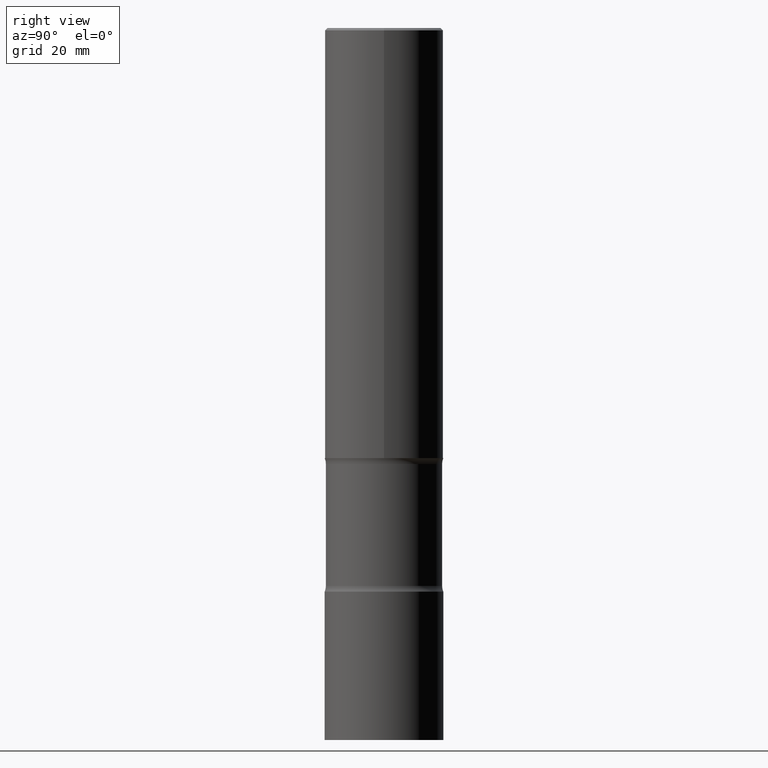
[diagram: clean part render]
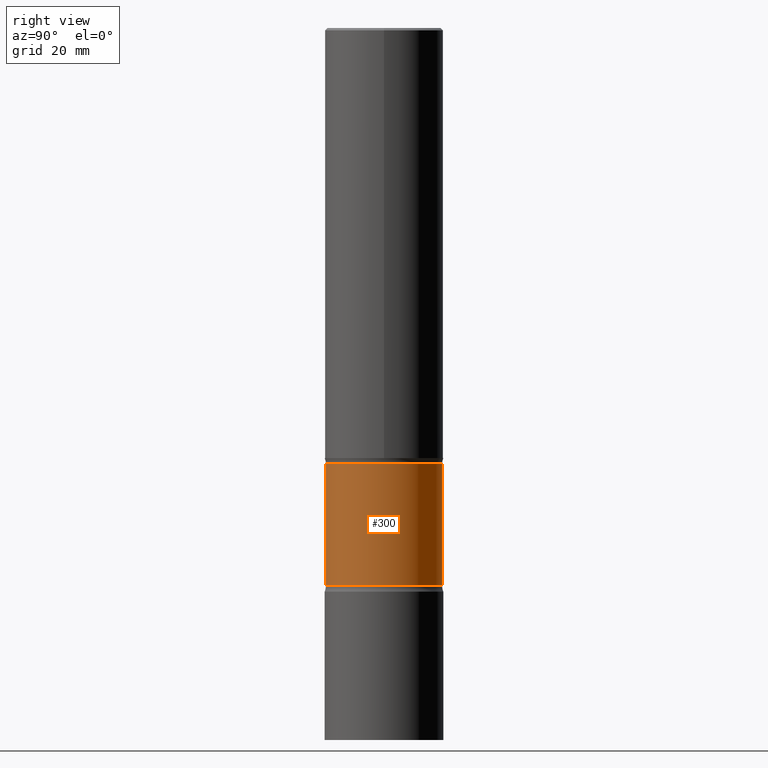
[diagram: same view with one face highlighted and labeled with its STEP entity id]
A machine part, right view. The second image highlights one B-rep face of the part: STEP entity #300.
In plain terms, the highlighted cylindrical surface (partial cylindrical patch) has radius 12.446 mm, axis along (0, -0, -1).
Its self-contained STEP definition (entity closure, byte-faithful):
#6 = EDGE_CURVE ( 'NONE', #94, #41, #86, .T. ) ;
#13 = DIRECTION ( 'NONE',  ( 6.982962677686266711E-15, 1.000000000000000000, -3.345119992241954342E-15 ) ) ;
#18 = DIRECTION ( 'NONE',  ( 2.601351323791836917E-29, -3.268248701348439037E-15, -1.000000000000000000 ) ) ;
#25 = CARTESIAN_POINT ( 'NONE',  ( 3.421651712066359198E-15, 0.4899999999999870570, -3.673989794855666791 ) ) ;
#27 = CARTESIAN_POINT ( 'NONE',  ( 1.486357676291951426E-28, -2.067570323369244540E-14, -5.999999999999999112 ) ) ;
#28 = LINE ( 'NONE', #408, #427 ) ;
#38 = EDGE_CURVE ( 'NONE', #192, #422, #349, .T. ) ;
#41 = VERTEX_POINT ( 'NONE', #72 ) ;
#52 = DIRECTION ( 'NONE',  ( 2.601351323791836917E-29, -3.268248701348439037E-15, -1.000000000000000000 ) ) ;
#57 = DIRECTION ( 'NONE',  ( 6.982962677686266711E-15, 1.000000000000000000, -2.230079994827969693E-15 ) ) ;
#72 = CARTESIAN_POINT ( 'NONE',  ( -3.395946508896822327E-15, -0.4900000000000131473, -3.673989794855663238 ) ) ;
#77 = EDGE_CURVE ( 'NONE', #41, #422, #28, .T. ) ;
#86 = CIRCLE ( 'NONE', #216, 0.4900000000000001021 ) ;
#87 = CARTESIAN_POINT ( 'NONE',  ( 8.812807036613977578E-29, -1.307372340140625811E-14, -3.673989794855665014 ) ) ;
#94 = VERTEX_POINT ( 'NONE', #25 ) ;
#108 = DIRECTION ( 'NONE',  ( 2.601351323791836917E-29, -3.268248701348439037E-15, -1.000000000000000000 ) ) ;
#116 = EDGE_CURVE ( 'NONE', #94, #192, #221, .T. ) ;
#132 = ORIENTED_EDGE ( 'NONE', *, *, #116, .F. ) ;
#165 = DIRECTION ( 'NONE',  ( 2.601351323791836917E-29, -3.268248701348439037E-15, -1.000000000000000000 ) ) ;
#192 = VERTEX_POINT ( 'NONE', #496 ) ;
#212 = FACE_OUTER_BOUND ( 'NONE', #425, .T. ) ;
#216 = AXIS2_PLACEMENT_3D ( 'NONE', #87, #165, #13 ) ;
#218 = CARTESIAN_POINT ( 'NONE',  ( -3.395946508896793533E-15, -0.4900000000000166445, -4.701010205144335430 ) ) ;
#221 = LINE ( 'NONE', #461, #323 ) ;
#233 = ORIENTED_EDGE ( 'NONE', *, *, #6, .T. ) ;
#284 = CYLINDRICAL_SURFACE ( 'NONE', #384, 0.4900000000000001021 ) ;
#300 = ADVANCED_FACE ( 'NONE', ( #212 ), #284, .T. ) ;
#323 = VECTOR ( 'NONE', #18, 39.37007874015748143 ) ;
#349 = CIRCLE ( 'NONE', #459, 0.4900000000000001021 ) ;
#374 = DIRECTION ( 'NONE',  ( 6.982962677686266711E-15, 1.000000000000000000, -3.345119992241954342E-15 ) ) ;
#384 = AXIS2_PLACEMENT_3D ( 'NONE', #27, #399, #57 ) ;
#388 = ORIENTED_EDGE ( 'NONE', *, *, #38, .F. ) ;
#396 = CARTESIAN_POINT ( 'NONE',  ( 1.148444794047964962E-28, -1.643028152359054986E-14, -4.701010205144336318 ) ) ;
#399 = DIRECTION ( 'NONE',  ( 2.601351323791836917E-29, -3.268248701348439037E-15, -1.000000000000000000 ) ) ;
#408 = CARTESIAN_POINT ( 'NONE',  ( -3.361644018907902538E-15, -0.4900000000000208078, -5.999999999999998224 ) ) ;
#418 = ORIENTED_EDGE ( 'NONE', *, *, #77, .T. ) ;
#422 = VERTEX_POINT ( 'NONE', #218 ) ;
#425 = EDGE_LOOP ( 'NONE', ( #233, #418, #388, #132 ) ) ;
#427 = VECTOR ( 'NONE', #108, 39.37007874015748143 ) ;
#459 = AXIS2_PLACEMENT_3D ( 'NONE', #396, #52, #374 ) ;
#461 = CARTESIAN_POINT ( 'NONE',  ( 3.421651712066419546E-15, 0.4899999999999793965, -6.000000000000000888 ) ) ;
#496 = CARTESIAN_POINT ( 'NONE',  ( 3.421651712066386020E-15, 0.4899999999999836153, -4.701010205144338094 ) ) ;